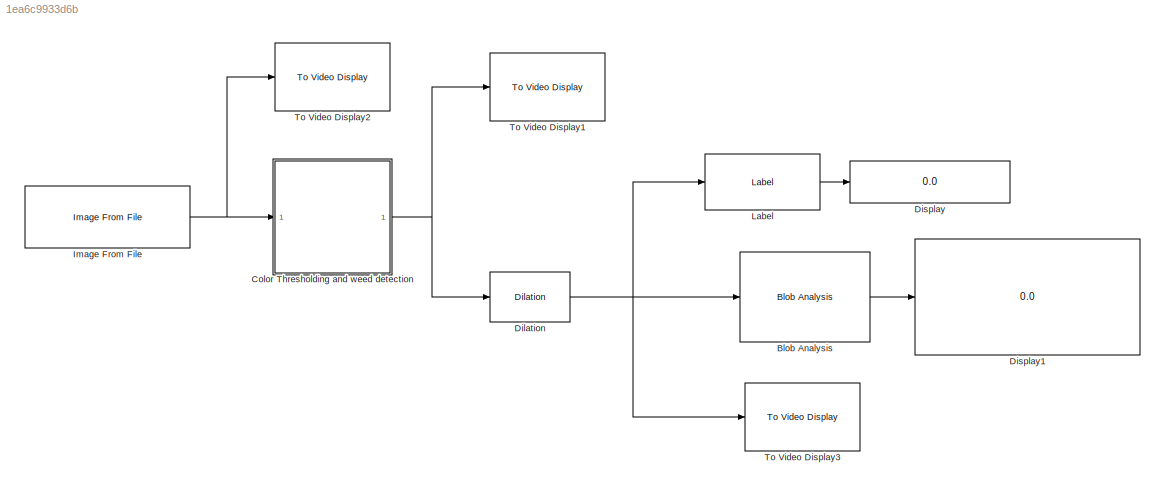
MODEL slx_1ea6c9933d6b
KIND model
CONFIG AbsTol = auto
CONFIG EnableMultiTasking = off
CONFIG FixedStep = auto
CONFIG MaxStep = auto
CONFIG MinStep = auto
CONFIG RelTol = 1e-3
CONFIG SampleTimeConstraint = Unconstrained
CONFIG SolverName = VariableStepAuto
CONFIG StartTime = 0.0
CONFIG StopTime = 5
BLOCK [Reference] Blob Analysis  REF=visionstatistics/Blob Analysis
  SourceBlock = visionstatistics/Blob Analysis
  SourceType = Blob Analysis
  Tag = vipblks_row_conv
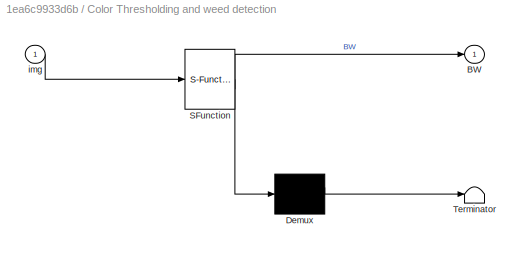
BLOCK [SubSystem] Color Thresholding and weed detection
  ErrorFcn = Stateflow.Translate.translate
  PermitHierarchicalResolution = ExplicitOnly
  SFBlockType = MATLAB Function
  TreatAsAtomicUnit = on
  VariantControl = Basic
BLOCK [Demux] Color Thresholding and weed detection/ Demux 
  Outputs = 1
BLOCK [S-Function] Color Thresholding and weed detection/ SFunction 
  EnableBusSupport = on
  FunctionName = sf_sfun
  PortCounts = [1 2]
  SFcnIsStateOwnerBlock = off
  SFunctionDeploymentMode = off
  Tag = Stateflow S-Function 5
BLOCK [Terminator] Color Thresholding and weed detection/ Terminator 
BLOCK [Outport] Color Thresholding and weed detection/BW
BLOCK [Inport] Color Thresholding and weed detection/img
BLOCK [Reference] Dilation  REF=visionmorphops/Dilation
  SourceBlock = visionmorphops/Dilation
  SourceType = Dilation
BLOCK [Display] Display
  Decimation = 1
BLOCK [Display] Display1
  Decimation = 1
BLOCK [Reference] Image From File  REF=visionsources/Image From File
  SourceBlock = visionsources/Image From File
  SourceType = Image From File
  Tag = vipblks_nd
BLOCK [Reference] Label  REF=visionmorphops/Label
  SourceBlock = visionmorphops/Label
  SourceType = Label
BLOCK [Reference] To Video Display1  REF=visionsinks/To Video Display
  SourceBlock = visionsinks/To Video Display
  SourceType = To Video Display
BLOCK [Reference] To Video Display2  REF=visionsinks/To Video Display
  SourceBlock = visionsinks/To Video Display
  SourceType = To Video Display
BLOCK [Reference] To Video Display3  REF=visionsinks/To Video Display
  SourceBlock = visionsinks/To Video Display
  SourceType = To Video Display
LINE Blob Analysis:1 -> Display1:1
NET Color Thresholding and weed detection:1 -> Dilation:1, To Video Display1:1
NET Dilation:1 -> Blob Analysis:1, Label:1, To Video Display3:1
NET Image From File:1 -> Color Thresholding and weed detection:1, To Video Display2:1
LINE Label:1 -> Display:1
note: NET lines group one-source signal fan-out (src -> all destinations, sorted); 1:1 wires keep LINE
CHART Color Thresholding and weed detection states=1 transitions=1
  STATE_LABEL 'eML_blk_kernel()'
  STATE_LABEL 'SCRIPT:\nfunction BW= processImageBasic(img)\n\n% Convert RGB image to chosen color space\nI = rgb2lab(img);\n\n% Define thresholds for channel 1 based on histogram settings\nchannel1Min = 27.074;\nchannel1Max = 87.009;\n\n% Define thresholds for channel 2 based on histogram settings\nchannel2Min = -21.242;\nchannel2Max = -7.642;\n\n% Define thresholds for channel 3 based on histogram settings\nchannel3Min = 40....<+318ch>'
CHART  states=0 transitions=0
